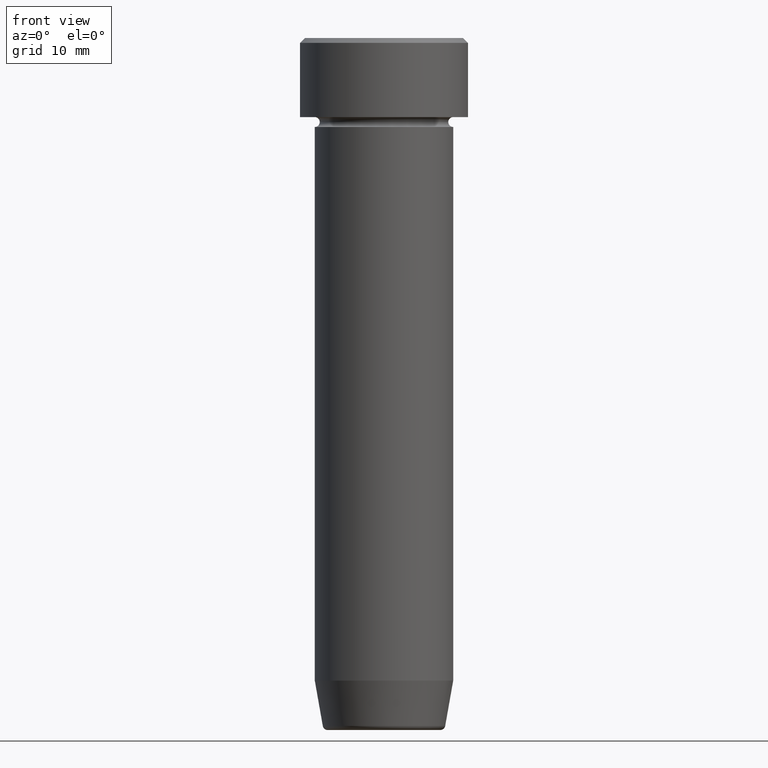
[diagram: clean part render]
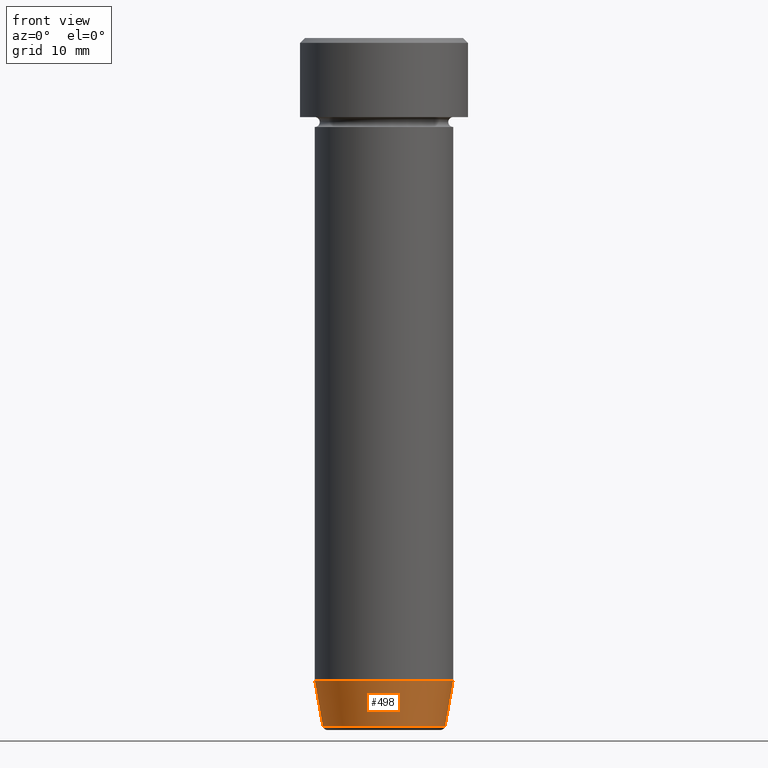
[diagram: same view with one face highlighted and labeled with its STEP entity id]
A machine part, front view. The second image highlights one B-rep face of the part: STEP entity #498.
In plain terms, the highlighted conical surface has half-angle 10 deg.
Its self-contained STEP definition (entity closure, byte-faithful):
#13 = CARTESIAN_POINT ( 'NONE',  ( 6.118365096457672792, 0.000000000000000000, -70.00000000000000000 ) ) ;
#15 = CARTESIAN_POINT ( 'NONE',  ( -6.999999999999999112, 8.572527594031472204E-16, -65.00000000000000000 ) ) ;
#23 = VERTEX_POINT ( 'NONE', #276 ) ;
#50 = DIRECTION ( 'NONE',  ( -0.1736481776669304145, 2.126576849575772531E-17, 0.9848077530122080203 ) ) ;
#97 = DIRECTION ( 'NONE',  ( 1.000000000000000000, 0.000000000000000000, 0.000000000000000000 ) ) ;
#120 = CIRCLE ( 'NONE', #389, 6.191219157375138948 ) ;
#121 = ORIENTED_EDGE ( 'NONE', *, *, #168, .F. ) ;
#134 = DIRECTION ( 'NONE',  ( 0.1736481776669304145, 0.000000000000000000, 0.9848077530122080203 ) ) ;
#168 = EDGE_CURVE ( 'NONE', #433, #475, #191, .T. ) ;
#189 = CARTESIAN_POINT ( 'NONE',  ( 6.999999999999999112, 0.000000000000000000, -65.00000000000000000 ) ) ;
#191 = LINE ( 'NONE', #295, #235 ) ;
#200 = EDGE_LOOP ( 'NONE', ( #121, #348, #305, #329 ) ) ;
#212 = CARTESIAN_POINT ( 'NONE',  ( -6.191219157375138948, 8.077292158965355434E-16, -69.58682408883346682 ) ) ;
#216 = CARTESIAN_POINT ( 'NONE',  ( 0.000000000000000000, 0.000000000000000000, -69.58682408883346682 ) ) ;
#235 = VECTOR ( 'NONE', #50, 1000.000000000000227 ) ;
#238 = DIRECTION ( 'NONE',  ( -0.000000000000000000, -0.000000000000000000, 1.000000000000000000 ) ) ;
#276 = CARTESIAN_POINT ( 'NONE',  ( 6.191219157375138948, 0.000000000000000000, -69.58682408883346682 ) ) ;
#279 = CARTESIAN_POINT ( 'NONE',  ( 0.000000000000000000, 0.000000000000000000, -70.00000000000000000 ) ) ;
#295 = CARTESIAN_POINT ( 'NONE',  ( -6.118365096457672792, 7.492836231391776623E-16, -70.00000000000000000 ) ) ;
#305 = ORIENTED_EDGE ( 'NONE', *, *, #463, .T. ) ;
#329 = ORIENTED_EDGE ( 'NONE', *, *, #468, .F. ) ;
#338 = DIRECTION ( 'NONE',  ( -0.000000000000000000, -0.000000000000000000, 1.000000000000000000 ) ) ;
#343 = LINE ( 'NONE', #13, #452 ) ;
#348 = ORIENTED_EDGE ( 'NONE', *, *, #364, .T. ) ;
#364 = EDGE_CURVE ( 'NONE', #433, #23, #120, .T. ) ;
#389 = AXIS2_PLACEMENT_3D ( 'NONE', #216, #405, #556 ) ;
#405 = DIRECTION ( 'NONE',  ( -0.000000000000000000, -0.000000000000000000, 1.000000000000000000 ) ) ;
#430 = CIRCLE ( 'NONE', #582, 6.999999999999999112 ) ;
#433 = VERTEX_POINT ( 'NONE', #212 ) ;
#442 = AXIS2_PLACEMENT_3D ( 'NONE', #279, #338, #97 ) ;
#451 = CONICAL_SURFACE ( 'NONE', #442, 6.118365096457672792, 0.1745329251994330311 ) ;
#452 = VECTOR ( 'NONE', #134, 1000.000000000000227 ) ;
#463 = EDGE_CURVE ( 'NONE', #23, #526, #343, .T. ) ;
#464 = CARTESIAN_POINT ( 'NONE',  ( 0.000000000000000000, 0.000000000000000000, -65.00000000000000000 ) ) ;
#468 = EDGE_CURVE ( 'NONE', #475, #526, #430, .T. ) ;
#475 = VERTEX_POINT ( 'NONE', #15 ) ;
#498 = ADVANCED_FACE ( 'NONE', ( #567 ), #451, .T. ) ;
#515 = DIRECTION ( 'NONE',  ( 1.000000000000000000, 0.000000000000000000, 0.000000000000000000 ) ) ;
#526 = VERTEX_POINT ( 'NONE', #189 ) ;
#556 = DIRECTION ( 'NONE',  ( -1.000000000000000000, 0.000000000000000000, 0.000000000000000000 ) ) ;
#567 = FACE_OUTER_BOUND ( 'NONE', #200, .T. ) ;
#582 = AXIS2_PLACEMENT_3D ( 'NONE', #464, #238, #515 ) ;